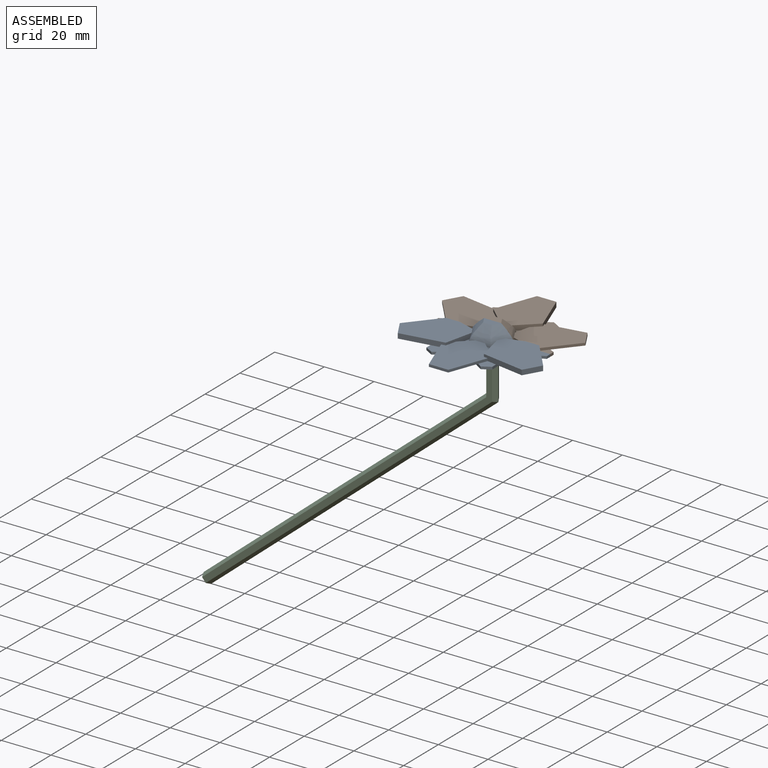
[diagram: assembled view]
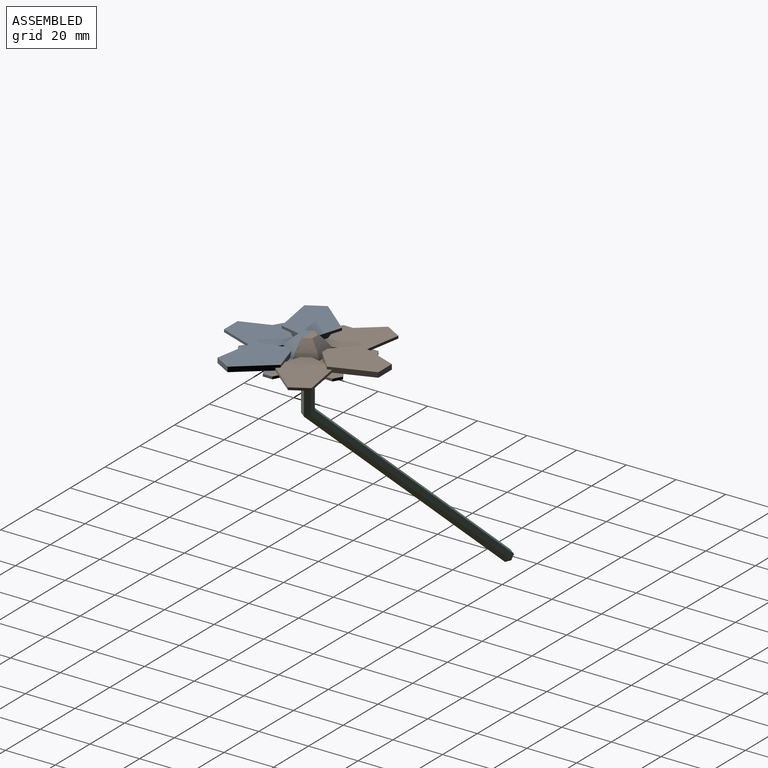
[diagram: assembled view, second angle]
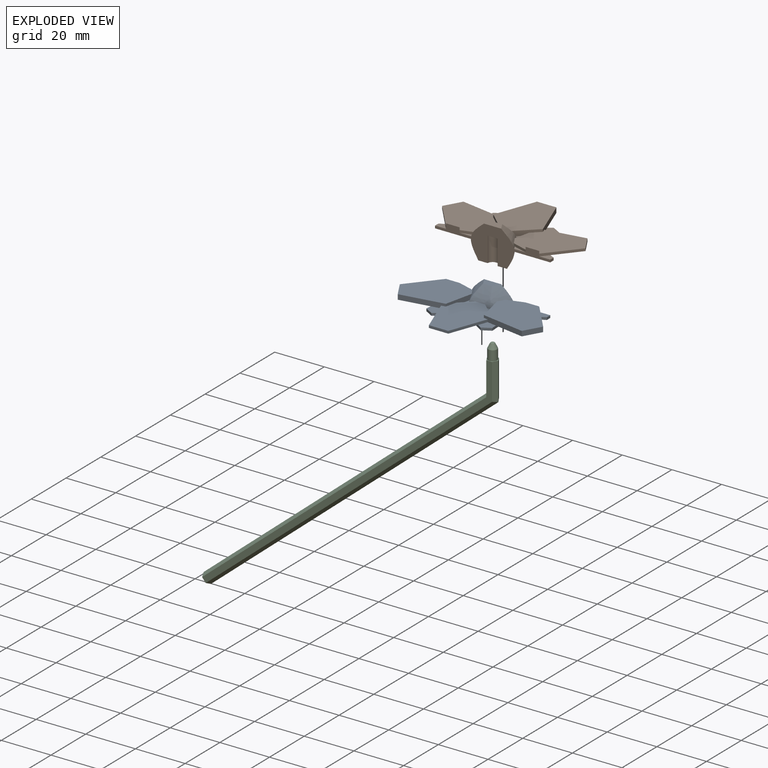
[diagram: exploded view]
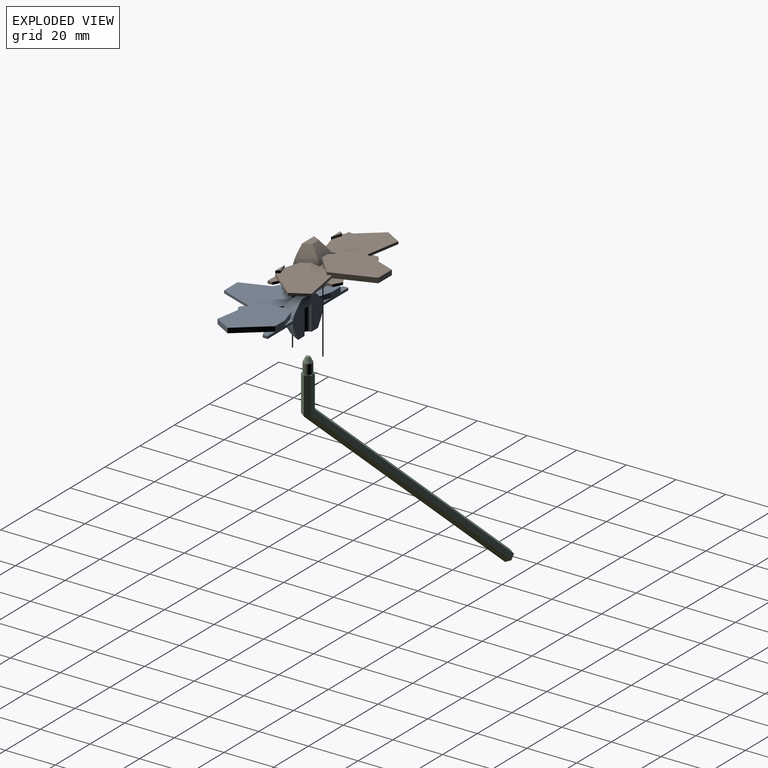
[diagram: exploded view, second angle]
ASSEMBLY  parts=3 mates=2
PART A: 62 faces, bbox 57.8x31.1x14 mm
  f0: plane 11.55x5mm, normal (0,0,-1), area 37mm2, adj f26,f56,f58,f59,f60
  f1: plane 7.81x1mm, normal (0,-1,0), area 7.8mm2, adj f2,f6,f8,f9
  f2: plane 16.47x16.13mm, normal (0,0,-1), area 176.8mm2, adj f1,f6,f8,f18,f19
  f3: plane 5.71x3.36mm, normal (0,0,-1), area 9.6mm2, adj f24,f25,f26
  f4: plane 4.66x4.33mm, normal (-0.68,0.73,0), area 6.1mm2, adj f9,f14,f15,f34
  f5: plane 5.21x4.79mm, normal (0,0,1), area 16.8mm2, adj f6,f16,f17,f18,f35
  f6: plane 14.82x5.49mm, normal (-0.94,-0.35,0), area 15.8mm2, adj f1,f2,f5,f9,f35
  f7: plane 5.21x4.79mm, normal (0,0,1), area 16.8mm2, adj f8,f19,f20,f21,f38
  f8: plane 14.82x5.49mm, normal (0.94,-0.35,0), area 15.8mm2, adj f1,f2,f7,f9,f38
  f9: plane 23.91x18.79mm, normal (0,0,1), area 303.4mm2, adj f1,f4,f6,f8,f10,f15,f34,f35
  f10: plane 4.66x4.33mm, normal (0.68,0.73,0), area 6.1mm2, adj f9,f12,f15,f39
  f11: plane 5.78x4.31mm, normal (0,0,-1), area 9.6mm2, adj f22,f23,f58
  f12: plane 5.76x4.33mm, normal (0,0,1), area 8.1mm2, adj f10,f15,f39,f57
  f13: plane 5.78x4.31mm, normal (0,0,-1), area 9.6mm2, adj f27,f28,f56
  f14: plane 5.76x4.33mm, normal (0,0,1), area 8.1mm2, adj f4,f15,f34,f55
  f15: bspline ~14x10.77mm, area 44.2mm2, adj f4,f9,f10,f12,f14,f54,f55,f57
  f16: plane 11.82x1mm, normal (-1,0.05,0), area 11.8mm2, adj f5,f17,f29,f31,f53
  f17: plane 3.35x1.93mm, normal (-0.5,-0.87,0), area 3.9mm2, adj f5,f16,f18,f53
  f18: plane 9.93x6.44mm, normal (0.54,-0.84,0), area 11.8mm2, adj f2,f5,f17,f19,f53
  f19: plane 9.93x6.44mm, normal (-0.54,-0.84,0), area 11.8mm2, adj f2,f7,f18,f20,f53
  f20: plane 3.35x1.93mm, normal (0.5,-0.87,0), area 3.9mm2, adj f7,f19,f21,f53
  f21: plane 11.82x1mm, normal (1,0.05,0), area 11.8mm2, adj f7,f20,f30,f32,f53
  f22: plane 4.31x4.11mm, normal (-0.72,-0.69,0), area 5.9mm2, adj f11,f23,f53,f58
  f23: plane 5.78x1.4mm, normal (0.24,0.97,0), area 5.9mm2, adj f11,f22,f53,f58
  f24: plane 5.71x1.68mm, normal (-0.96,0.28,0), area 5.9mm2, adj f3,f25,f26,f53
  f25: plane 5.71x1.68mm, normal (0.96,0.28,0), area 5.9mm2, adj f3,f24,f26,f53
  f26: bspline ~14x10.77mm, area 60.5mm2, adj f0,f3,f24,f25,f53,f56,f58
  f27: plane 5.78x1.4mm, normal (-0.24,0.97,0), area 5.9mm2, adj f13,f28,f53,f56
  f28: plane 4.31x4.11mm, normal (0.72,-0.69,0), area 5.9mm2, adj f13,f27,f53,f56
  f29: plane 16.22x15.99mm, normal (0,0,-1), area 176.8mm2, adj f16,f31,f35,f36,f51
  f30: plane 16.22x15.99mm, normal (0,0,-1), area 176.8mm2, adj f21,f32,f37,f38,f44
  f31: plane 10.54x5.38mm, normal (-0.45,-0.89,0), area 11.8mm2, adj f16,f29,f49,f50,f53
  f32: plane 10.54x5.38mm, normal (0.45,-0.89,0), area 11.8mm2, adj f21,f30,f41,f42,f53
  f33: plane 2.69x1.55mm, normal (0.87,0.5,0), area 0.6mm2, adj f34,f48,f52,f55
  f34: plane 11.24x2.58mm, normal (0.97,-0.22,0), area 17.4mm2, adj f4,f9,f14,f33,f35,f48,f55
  f35: plane 17.3x2.95mm, normal (0.17,-0.99,0), area 33.4mm2, adj f5,f6,f9,f29,f34,f36,f48
  f36: plane 6.76x3.91mm, normal (-0.87,-0.5,0), area 15.6mm2, adj f29,f35,f48,f51
  f37: plane 6.76x3.91mm, normal (0.87,-0.5,0), area 15.6mm2, adj f30,f38,f43,f44
  f38: plane 17.3x2.95mm, normal (-0.17,-0.99,0), area 33.4mm2, adj f7,f8,f9,f30,f37,f39,f43
  f39: plane 11.24x2.58mm, normal (-0.97,-0.22,0), area 17.4mm2, adj f9,f10,f12,f38,f40,f43,f57
  f40: plane 2.69x1.55mm, normal (-0.87,0.5,0), area 0.6mm2, adj f39,f43,f46,f57
  f41: plane 4.42x2.94mm, normal (0,0,1), area 8.4mm2, adj f32,f42,f44,f59
  f42: plane 1.93x1mm, normal (1,0,0), area 1.9mm2, adj f32,f41,f53,f59
  f43: plane 23.78x18.93mm, normal (0,0,1), area 315.9mm2, adj f37,f38,f39,f40,f44,f46,f59
  f44: plane 12.16x10.09mm, normal (0.77,0.64,0), area 31.6mm2, adj f30,f37,f41,f43,f59
  f45: plane 5.64x1.74mm, normal (0,0,1), area 4mm2, adj f46,f57,f59
  f46: plane 6.66x2.05mm, normal (-0.29,0.96,0), area 12.8mm2, adj f40,f43,f45,f57,f59
  f47: plane 5.64x1.74mm, normal (0,0,1), area 4mm2, adj f52,f55,f59
  f48: plane 23.78x18.93mm, normal (0,0,1), area 315.9mm2, adj f33,f34,f35,f36,f51,f52,f59
  f49: plane 1.93x1mm, normal (-1,0,0), area 1.9mm2, adj f31,f50,f53,f59
  f50: plane 4.42x2.94mm, normal (0,0,1), area 8.4mm2, adj f31,f49,f51,f59
  f51: plane 12.16x10.09mm, normal (-0.77,0.64,0), area 31.6mm2, adj f29,f36,f48,f50,f59
  f52: plane 6.66x2.05mm, normal (0.29,0.96,0), area 12.8mm2, adj f33,f47,f48,f55,f59
  f53: plane 46.41x21.06mm, normal (0,0,-1), area 442.3mm2, adj f16,f17,f18,f19,f20,f21,f22,f23
  f54: plane 6.93x3mm, normal (0,0,1), area 15.6mm2, adj f15,f55,f57,f59
  f55: bspline ~7.5x6.93mm, area 41mm2, adj f14,f15,f33,f34,f47,f52,f54,f59
  f56: bspline ~14x9.33mm, area 60.5mm2, adj f0,f13,f26,f27,f28,f53,f59
  f57: bspline ~7.5x6.93mm, area 41mm2, adj f12,f15,f39,f40,f45,f46,f54,f59
  f58: bspline ~14x9.33mm, area 60.5mm2, adj f0,f11,f22,f23,f26,f53,f59
  f59: plane 46.41x14mm, normal (0,1,0), area 214mm2, adj f0,f41,f42,f43,f44,f45,f46,f47
  f60: cylinder r=2mm len=10mm, axis (0,0,-1), area 62.8mm2, adj f0,f59,f61
  f61: plane 4x2mm, normal (0,0,-1), area 6.3mm2, adj f59,f60
PART B: 67 faces, bbox 57.8x31.1x14 mm
  f0: plane 11.55x5mm, normal (0,0,-1), area 37mm2, adj f20,f21,f27,f64,f65
  f1: plane 6.93x3mm, normal (0,0,1), area 15.6mm2, adj f26,f34,f35,f64
  f2: plane 46.41x21.06mm, normal (0,0,-1), area 442.3mm2, adj f9,f10,f20,f21,f22,f23,f24,f25
  f3: plane 4.37x1.34mm, normal (0.29,0.96,0), area 4.6mm2, adj f4,f13,f15,f64
  f4: plane 1.34x1.12mm, normal (-0.77,0.64,0), area 1.7mm2, adj f3,f13,f15,f64
  f5: plane 1.34x1.12mm, normal (0.77,0.64,0), area 1.7mm2, adj f6,f14,f49,f64
  f6: plane 4.37x1.34mm, normal (-0.29,0.96,0), area 4.6mm2, adj f5,f14,f49,f64
  f7: plane 5.64x1.74mm, normal (0,0,1), area 4mm2, adj f35,f45,f64
  f8: plane 4.42x2.94mm, normal (0,0,1), area 8.4mm2, adj f9,f44,f56,f64
  f9: plane 1.93x1mm, normal (-1,0,0), area 1.9mm2, adj f2,f8,f56,f64
  f10: plane 1.93x1mm, normal (1,0,0), area 1.9mm2, adj f2,f11,f25,f64
  f11: plane 4.42x2.94mm, normal (0,0,1), area 8.4mm2, adj f10,f25,f53,f64
  f12: plane 5.64x1.74mm, normal (0,0,1), area 4mm2, adj f26,f52,f64
  f13: plane 5.49x1.34mm, normal (0,0,1), area 3.7mm2, adj f3,f4,f64
  f14: plane 5.49x1.34mm, normal (0,0,1), area 3.7mm2, adj f5,f6,f64
  f15: plane 23.65x18.93mm, normal (0,0,1), area 303.4mm2, adj f3,f4,f35,f36,f41,f44,f45,f46
  f16: plane 5.78x4.31mm, normal (0,0,-1), area 9.6mm2, adj f20,f24,f61
  f17: plane 16.22x15.99mm, normal (0,0,-1), area 176.8mm2, adj f25,f50,f53,f54,f58
  f18: plane 16.47x16.13mm, normal (0,0,-1), area 176.8mm2, adj f23,f39,f40,f41,f59
  f19: plane 5.71x3.36mm, normal (0,0,-1), area 9.6mm2, adj f21,f22,f60
  f20: bspline ~14x9.33mm, area 60.5mm2, adj f0,f2,f16,f21,f24,f61,f64
  f21: bspline ~14x10.77mm, area 60.5mm2, adj f0,f2,f19,f20,f22,f27,f60
  f22: plane 5.74x1.7mm, normal (0.96,-0.28,0), area 5.9mm2, adj f2,f19,f21,f60
  f23: plane 9.93x6.44mm, normal (0.54,0.84,0), area 11.8mm2, adj f2,f18,f32,f43,f59
  f24: plane 4.33x4.13mm, normal (-0.72,0.69,0), area 5.9mm2, adj f2,f16,f20,f61
  f25: plane 10.54x5.38mm, normal (0.45,0.89,0), area 11.8mm2, adj f2,f10,f11,f17,f58
  f26: bspline ~7.5x6.93mm, area 44.3mm2, adj f1,f12,f34,f49,f51,f52,f63,f64
  f27: bspline ~14x9.33mm, area 60.5mm2, adj f0,f2,f21,f28,f31,f55,f64
  f28: plane 5.78x4.31mm, normal (0,0,-1), area 9.6mm2, adj f27,f31,f55
  f29: plane 16.22x15.99mm, normal (0,0,-1), area 176.8mm2, adj f30,f44,f47,f48,f56
  f30: plane 11.82x1mm, normal (-1,-0.05,0), area 11.8mm2, adj f2,f29,f32,f43,f56
  f31: plane 5.81x1.43mm, normal (-0.24,-0.97,0), area 5.9mm2, adj f2,f27,f28,f55
  f32: plane 5.21x4.79mm, normal (0,0,1), area 16.8mm2, adj f23,f30,f41,f43,f47
  f33: plane 5.76x4.33mm, normal (0,0,1), area 8.1mm2, adj f34,f35,f36,f46
  f34: bspline ~14x10.77mm, area 41mm2, adj f1,f26,f33,f35,f36,f37,f38,f63
  f35: bspline ~7.5x6.93mm, area 44.3mm2, adj f1,f7,f15,f33,f34,f45,f46,f64
  f36: plane 8.45x7.85mm, normal (-0.68,-0.73,0), area 17.4mm2, adj f15,f33,f34,f37,f41,f42,f46
  f37: plane 3.1x0.2mm, normal (0,-1,0), area 0.6mm2, adj f34,f36,f38,f42
  f38: plane 8.45x7.85mm, normal (0.68,-0.73,0), area 17.4mm2, adj f34,f37,f39,f42,f49,f51,f63
  f39: plane 16.46x6.09mm, normal (0.94,0.35,0), area 33.4mm2, adj f18,f38,f40,f42,f49,f50,f62
  f40: plane 7.81x2mm, normal (0,1,0), area 15.6mm2, adj f18,f39,f41,f42
  f41: plane 16.46x6.09mm, normal (-0.94,0.35,0), area 33.4mm2, adj f15,f18,f32,f36,f40,f42,f47
  f42: plane 24.31x20mm, normal (0,0,1), area 319.6mm2, adj f36,f37,f38,f39,f40,f41
  f43: plane 3.35x1.93mm, normal (-0.5,0.87,0), area 3.9mm2, adj f2,f23,f30,f32
  f44: plane 12.16x10.09mm, normal (-0.77,-0.64,0), area 15.8mm2, adj f8,f15,f29,f48,f64
  f45: plane 6.13x1.92mm, normal (0.29,-0.96,0), area 6.1mm2, adj f7,f15,f35,f64
  f46: plane 6.25x1.47mm, normal (0.97,0.22,0), area 6.1mm2, adj f15,f33,f35,f36
  f47: plane 15.58x2.66mm, normal (0.17,0.99,0), area 15.8mm2, adj f15,f29,f32,f41,f48
  f48: plane 6.76x3.91mm, normal (-0.87,0.5,0), area 7.8mm2, adj f15,f29,f44,f47
  f49: plane 23.65x18.93mm, normal (0,0,1), area 303.4mm2, adj f5,f6,f26,f38,f39,f50,f51,f52
  f50: plane 15.58x2.66mm, normal (-0.17,0.99,0), area 15.8mm2, adj f17,f39,f49,f54,f62
  f51: plane 6.25x1.47mm, normal (-0.97,0.22,0), area 6.1mm2, adj f26,f38,f49,f63
  f52: plane 6.13x1.92mm, normal (-0.29,-0.96,0), area 6.1mm2, adj f12,f26,f49,f64
  f53: plane 12.16x10.09mm, normal (0.77,-0.64,0), area 15.8mm2, adj f11,f17,f49,f54,f64
  f54: plane 6.76x3.91mm, normal (0.87,0.5,0), area 7.8mm2, adj f17,f49,f50,f53
  f55: plane 4.33x4.13mm, normal (0.72,0.69,0), area 5.9mm2, adj f2,f27,f28,f31
  f56: plane 10.54x5.38mm, normal (-0.45,0.89,0), area 11.8mm2, adj f2,f8,f9,f29,f30
  f57: plane 3.35x1.93mm, normal (0.5,0.87,0), area 3.9mm2, adj f2,f58,f59,f62
  f58: plane 11.82x1mm, normal (1,-0.05,0), area 11.8mm2, adj f2,f17,f25,f57,f62
  f59: plane 9.93x6.44mm, normal (-0.54,0.84,0), area 11.8mm2, adj f2,f18,f23,f57,f62
  f60: plane 5.74x1.7mm, normal (-0.96,-0.28,0), area 5.9mm2, adj f2,f19,f21,f22
  f61: plane 5.81x1.43mm, normal (0.24,-0.97,0), area 5.9mm2, adj f2,f16,f20,f24
  f62: plane 5.21x4.79mm, normal (0,0,1), area 16.8mm2, adj f39,f50,f57,f58,f59
  f63: plane 5.76x4.33mm, normal (0,0,1), area 8.1mm2, adj f26,f34,f38,f51
  f64: plane 46.41x14mm, normal (0,-1,0), area 214mm2, adj f0,f1,f2,f3,f4,f5,f6,f7
  f65: cylinder r=2mm len=10mm, axis (0,0,-1), area 62.8mm2, adj f0,f64,f66
  f66: plane 4x2mm, normal (0,0,-1), area 6.3mm2, adj f64,f65
PART C: 15 faces, bbox 18.1x4x163.5 mm
  f0: plane 12.29x10.23mm, normal (0.56,-0.5,0.66), area 34.2mm2, adj f1,f5,f10,f12
  f1: plane 12.29x10.23mm, normal (0.56,0.5,0.66), area 34.2mm2, adj f0,f4,f9,f12
  f2: plane 11.05x9.19mm, normal (-0.56,0.5,-0.66), area 30.5mm2, adj f3,f4,f8,f12
  f3: plane 11.05x9.19mm, normal (-0.56,-0.5,-0.66), area 30.5mm2, adj f2,f5,f7,f12
  f4: plane 159.88x12.62mm, normal (0,1,0), area 378.7mm2, adj f1,f2,f6,f8,f9,f12
  f5: plane 159.88x12.62mm, normal (0,-1,0), area 378.7mm2, adj f0,f3,f6,f7,f10,f12
  f6: plane 4.62x4mm, normal (0,0,-1), area 13.9mm2, adj f4,f5,f7,f8,f9,f10
  f7: plane 149.46x2mm, normal (-0.87,-0.5,0), area 344.5mm2, adj f3,f5,f6,f8
  f8: plane 149.46x2mm, normal (-0.87,0.5,0), area 344.5mm2, adj f2,f4,f6,f7
  f9: plane 151.08x2mm, normal (0.87,0.5,0), area 348.3mm2, adj f1,f4,f6,f10
  f10: plane 151.08x2mm, normal (0.87,-0.5,0), area 348.3mm2, adj f0,f5,f6,f9
  f11: cylinder r=1.8mm len=5.38mm, axis (-0.77,0,0.64), area 45.2mm2, adj f12,f14
  f12: plane 4x3.54mm, normal (-0.77,0,0.64), area 3.7mm2, adj f0,f1,f2,f3,f4,f5,f11
  f13: plane 1.6x1.23mm, normal (-0.77,0,0.64), area 2mm2, adj f14
  f14: cone r=0.8mm half-angle=26.6deg, axis (0.77,0,-0.64), area 18.3mm2, adj f11,f13
PLACE A t=(3.76,14.43,11.4)mm fixed
PLACE B t=(3.76,14.43,11.4)mm fixed
PLACE C rot(axis=(0,1,0),50deg) t=(-111.15,14.63,-99.02)mm
MATE cylindrical C.f14 <-> B.f65  axis (0,0,1) through (3.76,14.43,13.4)mm
MATE planar C.f14 <-> A.f0  axis (0,0,1) through (3.76,14.43,11.4)mm
